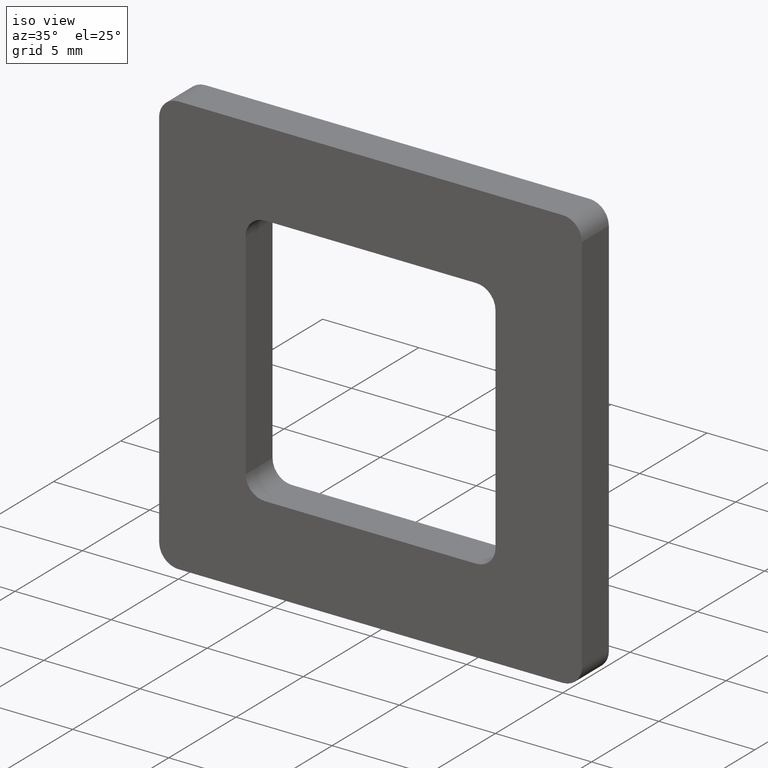
[diagram: clean part render]
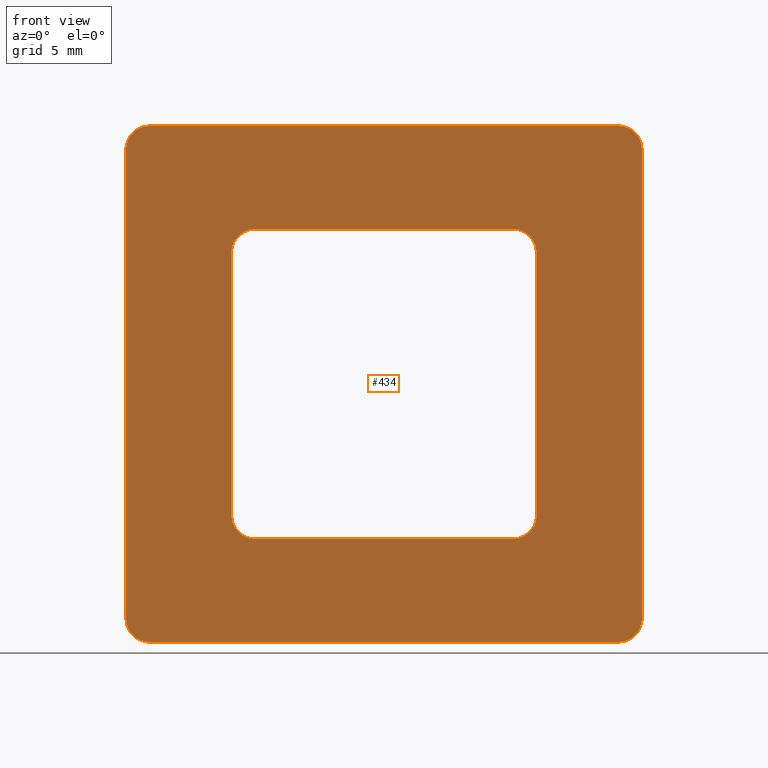
[diagram: tour spotlight — one face highlighted and labeled with its STEP entity id]
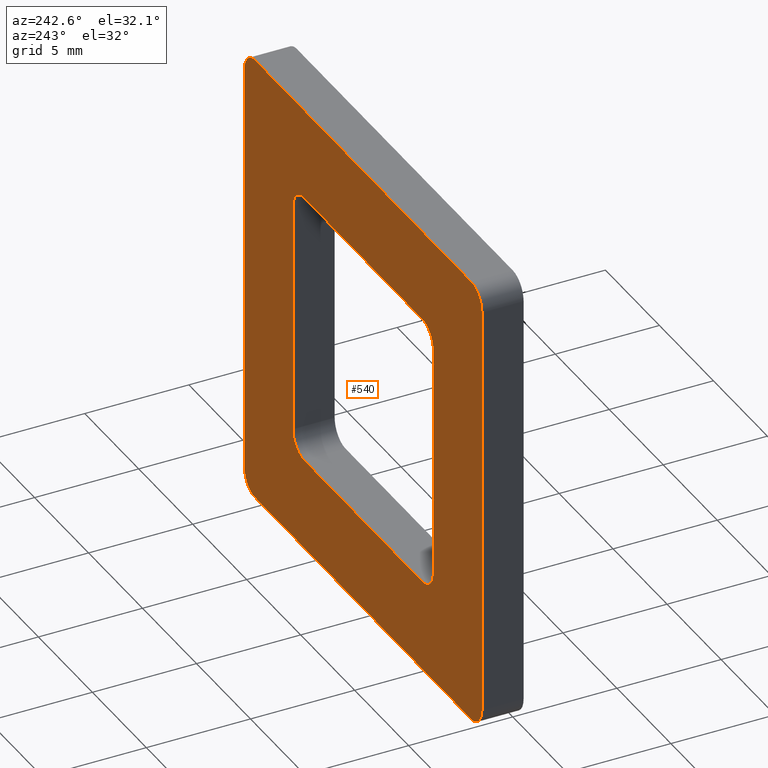
[diagram: tour spotlight — one face highlighted and labeled with its STEP entity id]
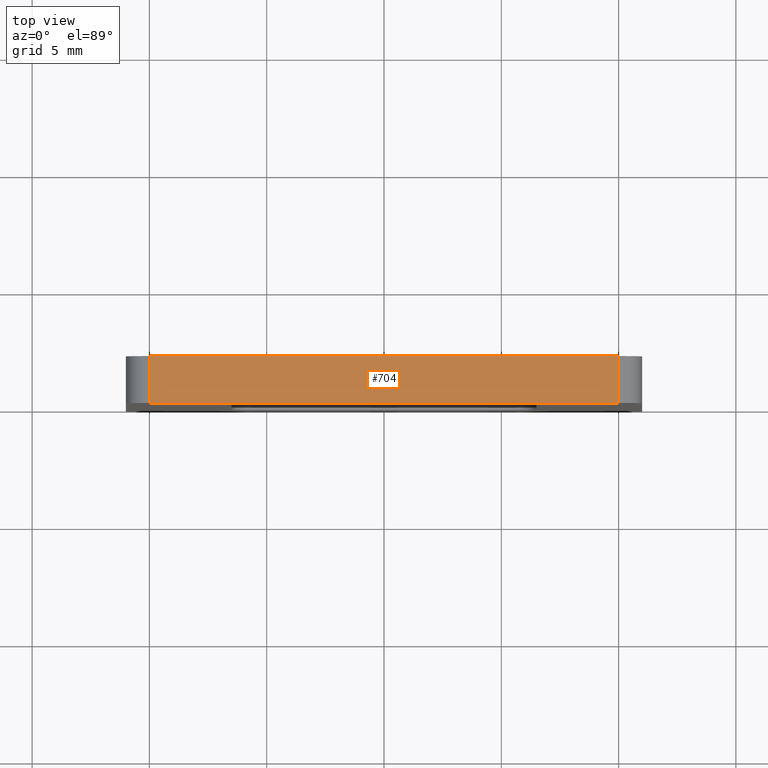
[diagram: tour spotlight — one face highlighted and labeled with its STEP entity id]
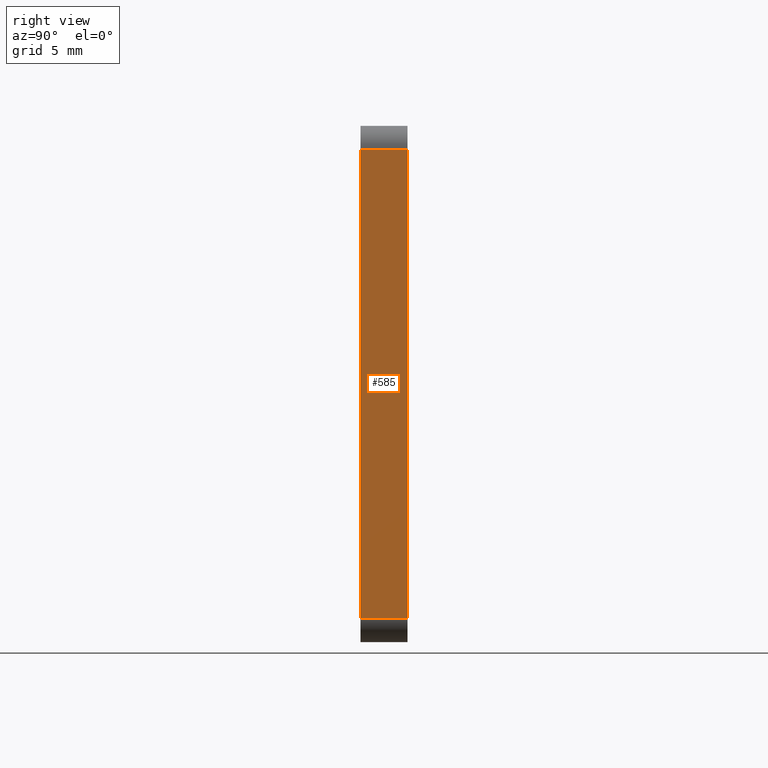
[diagram: tour spotlight — one face highlighted and labeled with its STEP entity id]
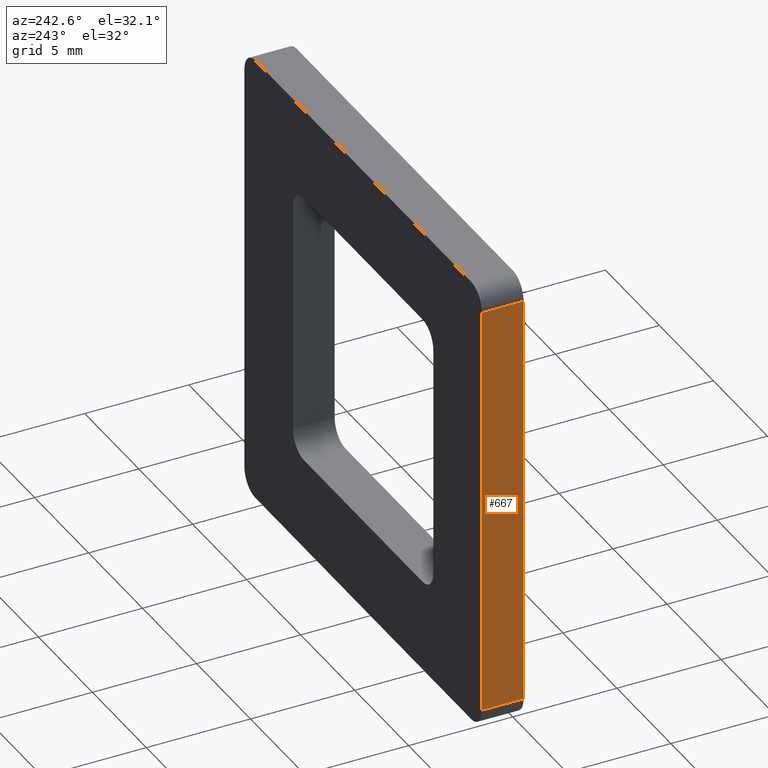
[diagram: tour spotlight — one face highlighted and labeled with its STEP entity id]
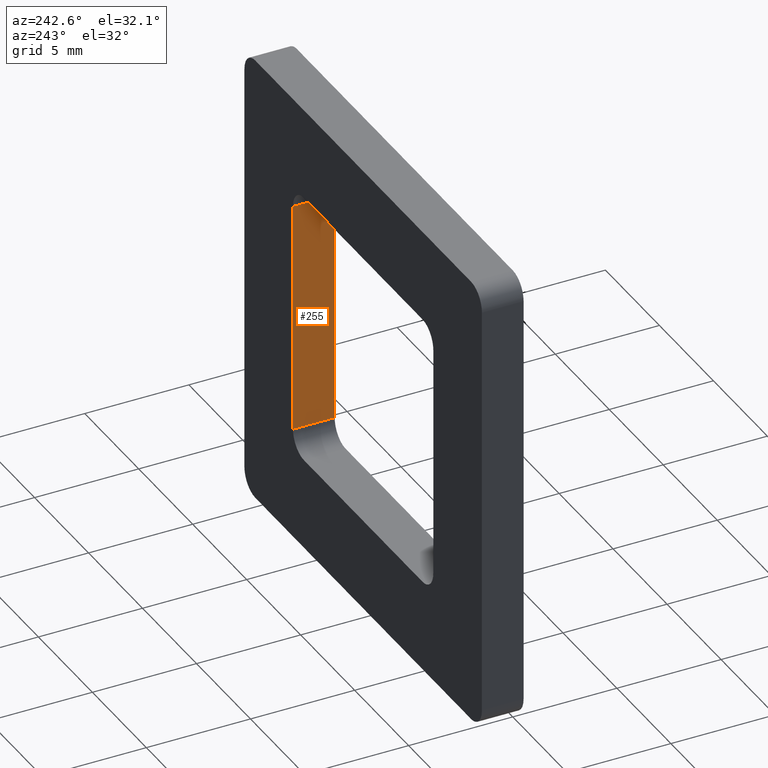
[diagram: tour spotlight — one face highlighted and labeled with its STEP entity id]
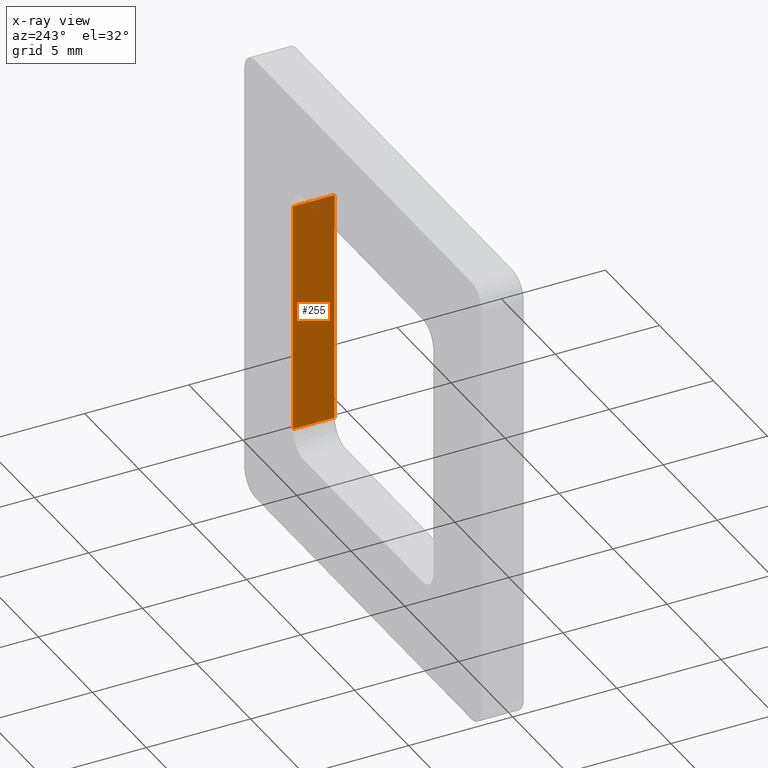
[diagram: x-ray of the same camera — body ghosted, this tour face saturated]
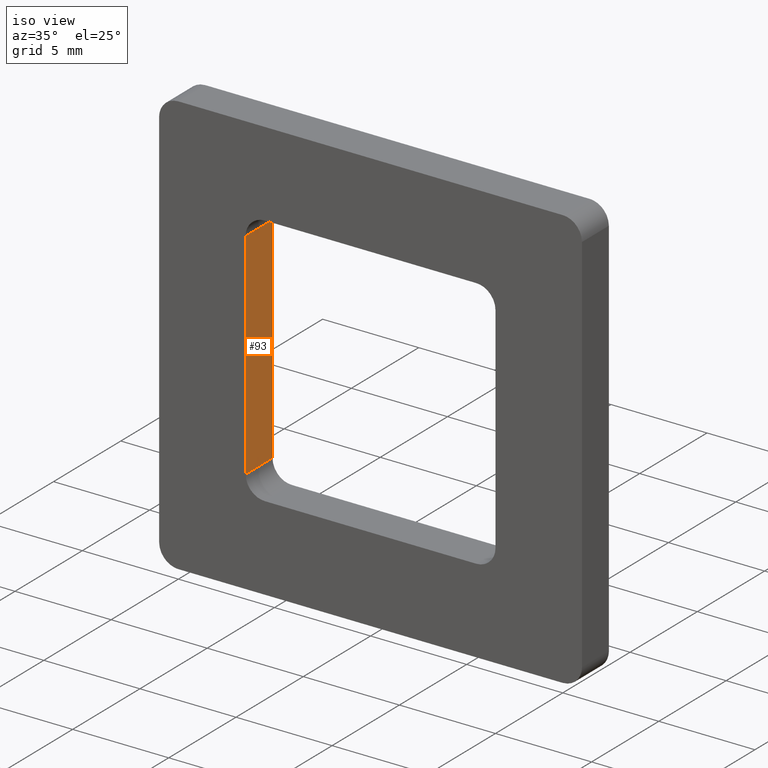
[diagram: tour spotlight — one face highlighted and labeled with its STEP entity id]
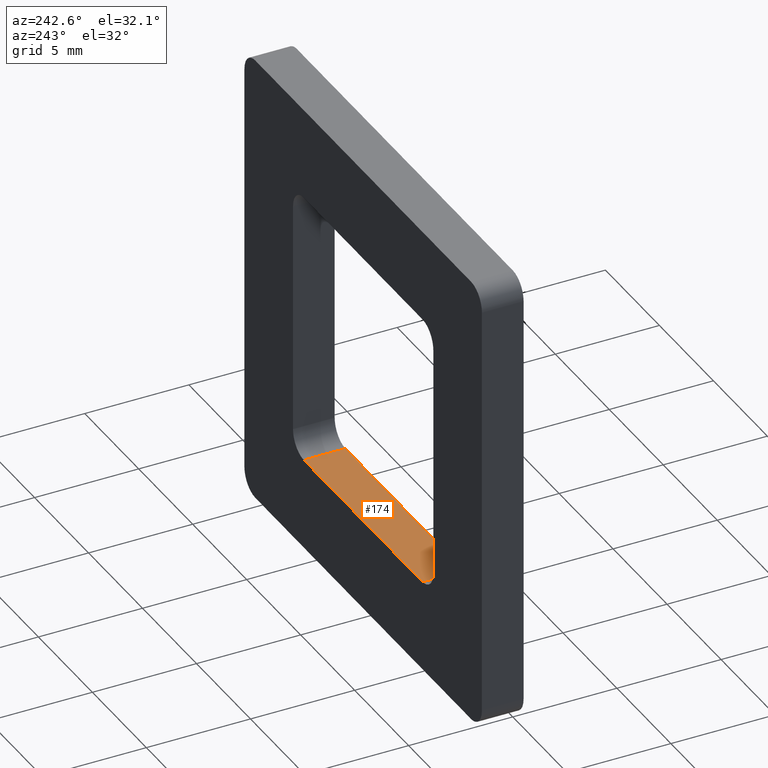
[diagram: tour spotlight — one face highlighted and labeled with its STEP entity id]
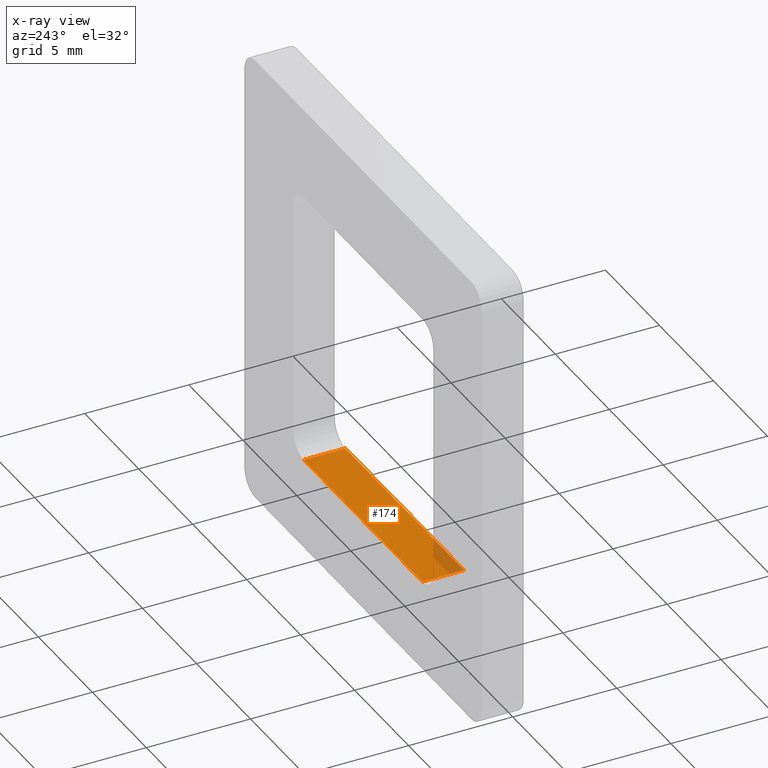
[diagram: x-ray of the same camera — body ghosted, this tour face saturated]
A machine part: a face-by-face anatomy tour. The part has 18 B-rep faces; the first image is the clean iso view, then the 8 largest visible faces are spotlighted one at a time (largest first), each with its STEP entity span.

Face 1 — front view, entity #434. In plain terms, the highlighted face is a freeform B-spline surface patch.
Definition (entity closure, byte-faithful):
#19=CARTESIAN_POINT('',(-5.499999805292820,0.0,6.599998474121080));
#20=VERTEX_POINT('',#19);
#21=CARTESIAN_POINT('',(-6.500000000000000,0.0,5.599998386698300));
#22=VERTEX_POINT('',#21);
#23=CARTESIAN_POINT('',(-5.499999805292820,0.0,6.599998474121080));
#24=CARTESIAN_POINT('',(-5.602271503841363,0.0,6.600047610113565));
#25=CARTESIAN_POINT('',(-5.757681386476734,0.0,6.575939252710484));
#26=CARTESIAN_POINT('',(-5.981940657766137,0.0,6.484652364904074));
#27=CARTESIAN_POINT('',(-6.149291914588513,0.0,6.371349355156148));
#28=CARTESIAN_POINT('',(-6.287180187057671,0.0,6.224697940013072));
#29=CARTESIAN_POINT('',(-6.384308691065453,0.0,6.077381914624537));
#30=CARTESIAN_POINT('',(-6.472984868942279,0.0,5.874038868745387));
#31=CARTESIAN_POINT('',(-6.500056828308114,0.0,5.706361845769147));
#32=CARTESIAN_POINT('',(-6.500000000000000,0.0,5.599998386698300));
#33=B_SPLINE_CURVE_WITH_KNOTS('',3,(#23,#24,#25,#26,#27,#28,#29,#30,#31,#32),.UNSPECIFIED.,.F.,.U.,(4,1,1,1,1,1,1,4),(0.000000027069647,0.306796130832803,0.466334977062116,0.724048720658952,0.908116637964619,1.067654823932074,1.251737897525835,1.570806465012214),.UNSPECIFIED.);
#34=EDGE_CURVE('',#20,#22,#33,.T.);
#71=CARTESIAN_POINT('',(-6.500000000000000,0.0,-5.600009918212890));
#72=VERTEX_POINT('',#71);
#73=CARTESIAN_POINT('',(-6.500000000000000,0.0,5.599998386698300));
#74=CARTESIAN_POINT('',(-6.500000000000000,0.0,-5.600009918212890));
#75=QUASI_UNIFORM_CURVE('',1,(#73,#74),.UNSPECIFIED.,.F.,.U.);
#76=EDGE_CURVE('',#22,#72,#75,.T.);
#108=CARTESIAN_POINT('',(-5.499999988075120,0.0,-6.600009918212890));
#109=VERTEX_POINT('',#108);
#110=CARTESIAN_POINT('',(-6.500000000000000,0.0,-5.600009918212890));
#111=CARTESIAN_POINT('',(-6.500096338761510,0.0,-5.718651224348338));
#112=CARTESIAN_POINT('',(-6.463158444687189,0.0,-5.923113299518286));
#113=CARTESIAN_POINT('',(-6.330525007271611,0.0,-6.174923652096678));
#114=CARTESIAN_POINT('',(-6.154725978316084,0.0,-6.371327140033055));
#115=CARTESIAN_POINT('',(-5.939828485589649,0.0,-6.511142512252079));
#116=CARTESIAN_POINT('',(-5.708618601731380,0.0,-6.585907380689978));
#117=CARTESIAN_POINT('',(-5.565449371299295,0.0,-6.600016945441354));
#118=CARTESIAN_POINT('',(-5.499999988075120,0.0,-6.600009918212890));
#119=B_SPLINE_CURVE_WITH_KNOTS('',3,(#110,#111,#112,#113,#114,#115,#116,#117,#118),.UNSPECIFIED.,.F.,.U.,(4,1,1,1,1,1,4),(0.000000027069838,0.355885849405058,0.613598114550901,0.846757960603233,1.141288465177002,1.374457113769694,1.570806194802052),.UNSPECIFIED.);
#120=EDGE_CURVE('',#72,#109,#119,.T.);
#152=CARTESIAN_POINT('',(5.499999523162879,0.0,-6.600009918212890));
#153=VERTEX_POINT('',#152);
#154=CARTESIAN_POINT('',(-5.499999988075120,0.0,-6.600009918212890));
#155=CARTESIAN_POINT('',(5.499999523162879,0.0,-6.600009918212890));
#156=QUASI_UNIFORM_CURVE('',1,(#154,#155),.UNSPECIFIED.,.F.,.U.);
#157=EDGE_CURVE('',#109,#153,#156,.T.);
#189=CARTESIAN_POINT('',(6.499999523162880,0.0,-5.600009874501520));
#190=VERTEX_POINT('',#189);
#191=CARTESIAN_POINT('',(5.499999523162879,0.0,-6.600009918212890));
#192=CARTESIAN_POINT('',(5.602271969401458,0.0,-6.600064714899125));
#193=CARTESIAN_POINT('',(5.774039546435617,0.0,-6.573406871039614));
#194=CARTESIAN_POINT('',(6.011577085845880,0.0,-6.469867359732230));
#195=CARTESIAN_POINT('',(6.209455085975989,0.0,-6.321235396156228));
#196=CARTESIAN_POINT('',(6.354214869257675,0.0,-6.135736835996869));
#197=CARTESIAN_POINT('',(6.434932973211570,0.0,-5.964990175707746));
#198=CARTESIAN_POINT('',(6.486094737115680,0.0,-5.796351508142365));
#199=CARTESIAN_POINT('',(6.500018038630845,0.0,-5.677733558134620));
#200=CARTESIAN_POINT('',(6.499999523162880,0.0,-5.600009874501520));
#201=B_SPLINE_CURVE_WITH_KNOTS('',3,(#191,#192,#193,#194,#195,#196,#197,#198,#199,#200),.UNSPECIFIED.,.F.,.U.,(4,1,1,1,1,1,1,4),(0.000000027071582,0.306796084268035,0.515421910505826,0.773139261879653,1.043111385976356,1.214920865244872,1.337640319665820,1.570806226589116),.UNSPECIFIED.);
#202=EDGE_CURVE('',#153,#190,#201,.T.);
#233=CARTESIAN_POINT('',(6.499999523162880,0.0,5.599994659423840));
#234=VERTEX_POINT('',#233);
#235=CARTESIAN_POINT('',(6.499999523162880,0.0,-5.600009874501520));
#236=CARTESIAN_POINT('',(6.499999523162880,0.0,5.599994659423840));
#237=QUASI_UNIFORM_CURVE('',1,(#235,#236),.UNSPECIFIED.,.F.,.U.);
#238=EDGE_CURVE('',#190,#234,#237,.T.);
#270=CARTESIAN_POINT('',(5.499999479451480,0.0,6.599994659423840));
#271=VERTEX_POINT('',#270);
#272=CARTESIAN_POINT('',(6.499999523162880,0.0,5.599994659423840));
#273=CARTESIAN_POINT('',(6.500007794061239,0.0,5.665444547042394));
#274=CARTESIAN_POINT('',(6.487100916830316,0.0,5.796340032770694));
#275=CARTESIAN_POINT('',(6.423886827601211,0.0,6.004821269935222));
#276=CARTESIAN_POINT('',(6.319076054078838,0.0,6.187203424187508));
#277=CARTESIAN_POINT('',(6.172931818485695,0.0,6.348432515296282));
#278=CARTESIAN_POINT('',(5.987827585226711,0.0,6.485758404133688));
#279=CARTESIAN_POINT('',(5.753625547646177,0.0,6.579419823886552));
#280=CARTESIAN_POINT('',(5.577719199898120,0.0,6.600002434375723));
#281=CARTESIAN_POINT('',(5.499999479451480,0.0,6.599994659423840));
#282=B_SPLINE_CURVE_WITH_KNOTS('',3,(#272,#273,#274,#275,#276,#277,#278,#279,#280,#281),.UNSPECIFIED.,.F.,.U.,(4,1,1,1,1,1,1,4),(0.000000027071732,0.196349183220017,0.392701604111150,0.650412453359468,0.822216300173182,1.043111385976577,1.337640319665868,1.570806226589145),.UNSPECIFIED.);
#283=EDGE_CURVE('',#234,#271,#282,.T.);
#314=CARTESIAN_POINT('',(5.499999479451480,0.0,6.599994659423840));
#315=CARTESIAN_POINT('',(-5.499999805292820,0.0,6.599998474121080));
#316=QUASI_UNIFORM_CURVE('',1,(#314,#315),.UNSPECIFIED.,.F.,.U.);
#317=EDGE_CURVE('',#271,#20,#316,.T.);
#329=CARTESIAN_POINT('',(-12.098899957359730,0.0,12.098899957359730));
#330=CARTESIAN_POINT('',(12.098900547445711,0.0,12.098899957359730));
#331=CARTESIAN_POINT('',(-12.098899957359730,0.0,-12.098900547445711));
#332=CARTESIAN_POINT('',(12.098900547445711,0.0,-12.098900547445711));
#333=B_SPLINE_SURFACE_WITH_KNOTS('',1,1,((#329,#331),(#330,#332)),.UNSPECIFIED.,.F.,.F.,.U.,(2,2),(2,2),(0.0,24.197800504805439),(0.0,24.197800504805450),.UNSPECIFIED.);
#334=CARTESIAN_POINT('',(10.0,0.0,11.0));
#335=VERTEX_POINT('',#334);
#336=CARTESIAN_POINT('',(-10.0,0.0,11.0));
#337=VERTEX_POINT('',#336);
#338=CARTESIAN_POINT('',(10.0,0.0,11.0));
#339=CARTESIAN_POINT('',(-10.0,0.0,11.0));
#340=QUASI_UNIFORM_CURVE('',1,(#338,#339),.UNSPECIFIED.,.F.,.U.);
#341=EDGE_CURVE('',#335,#337,#340,.T.);
#342=ORIENTED_EDGE('',*,*,#341,.T.);
#343=CARTESIAN_POINT('',(-11.0,0.0,10.0));
#344=VERTEX_POINT('',#343);
#345=CARTESIAN_POINT('',(-10.0,0.0,11.0));
#346=CARTESIAN_POINT('',(-11.0,0.0,11.0));
#347=CARTESIAN_POINT('',(-11.0,0.0,10.0));
#355=(BOUNDED_CURVE()B_SPLINE_CURVE(2,(#345,#346,#347),.UNSPECIFIED.,.F.,.U.)CURVE()GEOMETRIC_REPRESENTATION_ITEM()QUASI_UNIFORM_CURVE()RATIONAL_B_SPLINE_CURVE((1.0,0.707106781186548,1.0))REPRESENTATION_ITEM(''));
#356=EDGE_CURVE('',#337,#344,#355,.T.);
#357=ORIENTED_EDGE('',*,*,#356,.T.);
#358=CARTESIAN_POINT('',(-11.0,0.0,-10.0));
#359=VERTEX_POINT('',#358);
#360=CARTESIAN_POINT('',(-11.0,0.0,10.0));
#361=CARTESIAN_POINT('',(-11.0,0.0,-10.0));
#362=QUASI_UNIFORM_CURVE('',1,(#360,#361),.UNSPECIFIED.,.F.,.U.);
#363=EDGE_CURVE('',#344,#359,#362,.T.);
#364=ORIENTED_EDGE('',*,*,#363,.T.);
#365=CARTESIAN_POINT('',(-10.0,0.0,-11.0));
#366=VERTEX_POINT('',#365);
#367=CARTESIAN_POINT('',(-11.0,0.0,-10.0));
#368=CARTESIAN_POINT('',(-11.0,0.0,-11.0));
#369=CARTESIAN_POINT('',(-10.0,0.0,-11.0));
#377=(BOUNDED_CURVE()B_SPLINE_CURVE(2,(#367,#368,#369),.UNSPECIFIED.,.F.,.U.)CURVE()GEOMETRIC_REPRESENTATION_ITEM()QUASI_UNIFORM_CURVE()RATIONAL_B_SPLINE_CURVE((1.0,0.707106781186548,1.0))REPRESENTATION_ITEM(''));
#378=EDGE_CURVE('',#359,#366,#377,.T.);
#379=ORIENTED_EDGE('',*,*,#378,.T.);
#380=CARTESIAN_POINT('',(10.0,0.0,-11.0));
#381=VERTEX_POINT('',#380);
#382=CARTESIAN_POINT('',(-10.0,0.0,-11.0));
#383=CARTESIAN_POINT('',(10.0,0.0,-11.0));
#384=QUASI_UNIFORM_CURVE('',1,(#382,#383),.UNSPECIFIED.,.F.,.U.);
#385=EDGE_CURVE('',#366,#381,#384,.T.);
#386=ORIENTED_EDGE('',*,*,#385,.T.);
#387=CARTESIAN_POINT('',(11.0,0.0,-10.0));
#388=VERTEX_POINT('',#387);
#389=CARTESIAN_POINT('',(10.0,0.0,-11.0));
#390=CARTESIAN_POINT('',(11.0,0.0,-11.0));
#391=CARTESIAN_POINT('',(11.0,0.0,-10.0));
#399=(BOUNDED_CURVE()B_SPLINE_CURVE(2,(#389,#390,#391),.UNSPECIFIED.,.F.,.U.)CURVE()GEOMETRIC_REPRESENTATION_ITEM()QUASI_UNIFORM_CURVE()RATIONAL_B_SPLINE_CURVE((1.0,0.707106781186548,1.0))REPRESENTATION_ITEM(''));
#400=EDGE_CURVE('',#381,#388,#399,.T.);
#401=ORIENTED_EDGE('',*,*,#400,.T.);
#402=CARTESIAN_POINT('',(11.0,0.0,10.0));
#403=VERTEX_POINT('',#402);
#404=CARTESIAN_POINT('',(11.0,0.0,-10.0));
#405=CARTESIAN_POINT('',(11.0,0.0,10.0));
#406=QUASI_UNIFORM_CURVE('',1,(#404,#405),.UNSPECIFIED.,.F.,.U.);
#407=EDGE_CURVE('',#388,#403,#406,.T.);
#408=ORIENTED_EDGE('',*,*,#407,.T.);
#409=CARTESIAN_POINT('',(11.0,0.0,10.0));
#410=CARTESIAN_POINT('',(11.0,0.0,11.0));
#411=CARTESIAN_POINT('',(10.0,0.0,11.0));
#419=(BOUNDED_CURVE()B_SPLINE_CURVE(2,(#409,#410,#411),.UNSPECIFIED.,.F.,.U.)CURVE()GEOMETRIC_REPRESENTATION_ITEM()QUASI_UNIFORM_CURVE()RATIONAL_B_SPLINE_CURVE((1.0,0.707106781186548,1.0))REPRESENTATION_ITEM(''));
#420=EDGE_CURVE('',#403,#335,#419,.T.);
#421=ORIENTED_EDGE('',*,*,#420,.T.);
#422=EDGE_LOOP('',(#342,#357,#364,#379,#386,#401,#408,#421));
#423=FACE_OUTER_BOUND('',#422,.T.);
#424=ORIENTED_EDGE('',*,*,#317,.F.);
#425=ORIENTED_EDGE('',*,*,#283,.F.);
#426=ORIENTED_EDGE('',*,*,#238,.F.);
#427=ORIENTED_EDGE('',*,*,#202,.F.);
#428=ORIENTED_EDGE('',*,*,#157,.F.);
#429=ORIENTED_EDGE('',*,*,#120,.F.);
#430=ORIENTED_EDGE('',*,*,#76,.F.);
#431=ORIENTED_EDGE('',*,*,#34,.F.);
#432=EDGE_LOOP('',(#424,#425,#426,#427,#428,#429,#430,#431));
#433=FACE_BOUND('',#432,.T.);
#434=ADVANCED_FACE('',(#423,#433),#333,.F.);

Face 2 — auxiliary view, entity #540. In plain terms, the highlighted face is a freeform B-spline surface patch.
Definition (entity closure, byte-faithful):
#36=CARTESIAN_POINT('',(-6.500000000000000,2.0,5.599998386698300));
#37=VERTEX_POINT('',#36);
#43=CARTESIAN_POINT('',(-5.499999805292820,2.0,6.599998474121080));
#44=VERTEX_POINT('',#43);
#45=CARTESIAN_POINT('',(-5.499999805292820,2.0,6.599998474121080));
#46=CARTESIAN_POINT('',(-5.602271503840528,1.999999999999994,6.600047610113657));
#47=CARTESIAN_POINT('',(-5.757681389118447,2.000000000000022,6.575939253207957));
#48=CARTESIAN_POINT('',(-5.981940639755467,1.999999999999973,6.484652361509157));
#49=CARTESIAN_POINT('',(-6.149291995525049,2.000000000000022,6.371349376502232));
#50=CARTESIAN_POINT('',(-6.287179590371421,1.999999999999996,6.224697710988348));
#51=CARTESIAN_POINT('',(-6.388832578125717,1.999999999999994,6.070532105615633));
#52=CARTESIAN_POINT('',(-6.475095637857812,1.999999999999992,5.865869167119177));
#53=CARTESIAN_POINT('',(-6.500043378292648,2.000000000000028,5.698177527696788));
#54=CARTESIAN_POINT('',(-6.500000000000000,2.0,5.599998386698300));
#55=B_SPLINE_CURVE_WITH_KNOTS('',3,(#45,#46,#47,#48,#49,#50,#51,#52,#53,#54),.UNSPECIFIED.,.F.,.U.,(4,1,1,1,1,1,1,4),(0.000000027069647,0.306796130832803,0.466334977062116,0.724048720658952,0.908116637964619,1.067654823932074,1.276280812942471,1.570806465012214),.UNSPECIFIED.);
#56=EDGE_CURVE('',#44,#37,#55,.T.);
#78=CARTESIAN_POINT('',(-6.500000000000000,2.0,-5.600009918212890));
#79=VERTEX_POINT('',#78);
#85=CARTESIAN_POINT('',(-6.500000000000000,2.0,5.599998386698300));
#86=CARTESIAN_POINT('',(-6.500000000000000,2.0,-5.600009918212890));
#87=QUASI_UNIFORM_CURVE('',1,(#85,#86),.UNSPECIFIED.,.F.,.U.);
#88=EDGE_CURVE('',#37,#79,#87,.T.);
#122=CARTESIAN_POINT('',(-5.499999988075120,2.0,-6.600009918212890));
#123=VERTEX_POINT('',#122);
#129=CARTESIAN_POINT('',(-6.500000000000000,2.0,-5.600009918212890));
#130=CARTESIAN_POINT('',(-6.500024327640000,2.000000000000001,-5.685915458413326));
#131=CARTESIAN_POINT('',(-6.481962570234869,1.999999999999999,-5.824981657617534));
#132=CARTESIAN_POINT('',(-6.408594458662311,2.000000000000001,-6.034087905378192));
#133=CARTESIAN_POINT('',(-6.306897566027766,1.999999999999998,-6.203773145822335));
#134=CARTESIAN_POINT('',(-6.177420795221791,2.000000000000004,-6.341415069739232));
#135=CARTESIAN_POINT('',(-6.037779625427416,1.999999999999981,-6.449029047577841));
#136=CARTESIAN_POINT('',(-5.881299544961586,2.000000000000056,-6.531443829641099));
#137=CARTESIAN_POINT('',(-5.692255478139583,1.999999999999900,-6.587515454066765));
#138=CARTESIAN_POINT('',(-5.565449897817175,2.000000000000073,-6.600018307527357));
#139=CARTESIAN_POINT('',(-5.499999988075120,2.0,-6.600009918212890));
#140=B_SPLINE_CURVE_WITH_KNOTS('',3,(#129,#130,#131,#132,#133,#134,#135,#136,#137,#138,#139),.UNSPECIFIED.,.F.,.U.,(4,1,1,1,1,1,1,1,4),(0.000000027069838,0.257710106033720,0.417245790957405,0.662689984083491,0.846757960603233,0.981752192066466,1.190376831780440,1.374457113769694,1.570806194802052),.UNSPECIFIED.);
#141=EDGE_CURVE('',#79,#123,#140,.T.);
#159=CARTESIAN_POINT('',(5.499999523162879,2.0,-6.600009918212890));
#160=VERTEX_POINT('',#159);
#166=CARTESIAN_POINT('',(-5.499999988075120,2.0,-6.600009918212890));
#167=CARTESIAN_POINT('',(5.499999523162879,2.0,-6.600009918212890));
#168=QUASI_UNIFORM_CURVE('',1,(#166,#167),.UNSPECIFIED.,.F.,.U.);
#169=EDGE_CURVE('',#123,#160,#168,.T.);
#204=CARTESIAN_POINT('',(6.499999523162880,2.0,-5.600009874501520));
#205=VERTEX_POINT('',#204);
#211=CARTESIAN_POINT('',(5.499999523162879,2.0,-6.600009918212890));
#212=CARTESIAN_POINT('',(5.602270638074455,1.999999999999999,-6.600062803025037));
#213=CARTESIAN_POINT('',(5.774042799332637,1.999999999999999,-6.573411813358403));
#214=CARTESIAN_POINT('',(6.011578115039709,1.999999999999999,-6.469865829517368));
#215=CARTESIAN_POINT('',(6.183059080250349,2.0,-6.341046102280165));
#216=CARTESIAN_POINT('',(6.325186876513041,1.999999999999999,-6.176262032580319));
#217=CARTESIAN_POINT('',(6.418501508522814,2.000000000000001,-6.011544249635122));
#218=CARTESIAN_POINT('',(6.484179233180799,2.0,-5.812715159640356));
#219=CARTESIAN_POINT('',(6.500015928308903,2.0,-5.677732489993115));
#220=CARTESIAN_POINT('',(6.499999523162880,2.0,-5.600009874501520));
#221=B_SPLINE_CURVE_WITH_KNOTS('',3,(#211,#212,#213,#214,#215,#216,#217,#218,#219,#220),.UNSPECIFIED.,.F.,.U.,(4,1,1,1,1,1,1,4),(0.000000027071582,0.306796084268035,0.515421910505826,0.773139261879653,0.944934203357256,1.165832497648089,1.337640319665820,1.570806226589116),.UNSPECIFIED.);
#222=EDGE_CURVE('',#160,#205,#221,.T.);
#240=CARTESIAN_POINT('',(6.499999523162880,2.0,5.599994659423840));
#241=VERTEX_POINT('',#240);
#247=CARTESIAN_POINT('',(6.499999523162880,2.0,-5.600009874501520));
#248=CARTESIAN_POINT('',(6.499999523162880,2.0,5.599994659423840));
#249=QUASI_UNIFORM_CURVE('',1,(#247,#248),.UNSPECIFIED.,.F.,.U.);
#250=EDGE_CURVE('',#205,#241,#249,.T.);
#285=CARTESIAN_POINT('',(5.499999479451480,2.0,6.599994659423840));
#286=VERTEX_POINT('',#285);
#292=CARTESIAN_POINT('',(6.499999523162880,2.0,5.599994659423840));
#293=CARTESIAN_POINT('',(6.500007718066231,2.000000000000004,5.665444527258975));
#294=CARTESIAN_POINT('',(6.487101077425536,1.999999999999996,5.796340073812775));
#295=CARTESIAN_POINT('',(6.423886643109709,2.000000000000007,6.004821135947455));
#296=CARTESIAN_POINT('',(6.319076403935063,1.999999999999986,6.187203822802666));
#297=CARTESIAN_POINT('',(6.172931265779666,2.000000000000016,6.348431801222911));
#298=CARTESIAN_POINT('',(5.987828052240229,1.999999999999993,6.485759116803231));
#299=CARTESIAN_POINT('',(5.753625276227378,2.000000000000005,6.579419421949632));
#300=CARTESIAN_POINT('',(5.577719254256267,1.999999999999999,6.600002515001978));
#301=CARTESIAN_POINT('',(5.499999479451480,2.0,6.599994659423840));
#302=B_SPLINE_CURVE_WITH_KNOTS('',3,(#292,#293,#294,#295,#296,#297,#298,#299,#300,#301),.UNSPECIFIED.,.F.,.U.,(4,1,1,1,1,1,1,4),(0.000000027071732,0.196349183220017,0.392701604111150,0.650412453359468,0.822216300173182,1.043111385976577,1.337640319665868,1.570806226589145),.UNSPECIFIED.);
#303=EDGE_CURVE('',#241,#286,#302,.T.);
#320=CARTESIAN_POINT('',(5.499999479451480,2.0,6.599994659423840));
#321=CARTESIAN_POINT('',(-5.499999805292820,2.0,6.599998474121080));
#322=QUASI_UNIFORM_CURVE('',1,(#320,#321),.UNSPECIFIED.,.F.,.U.);
#323=EDGE_CURVE('',#286,#44,#322,.T.);
#435=CARTESIAN_POINT('',(-12.098899957359730,2.0,12.098899957359730));
#436=CARTESIAN_POINT('',(12.098900547445711,2.0,12.098899957359730));
#437=CARTESIAN_POINT('',(-12.098899957359730,2.0,-12.098900547445711));
#438=CARTESIAN_POINT('',(12.098900547445711,2.0,-12.098900547445711));
#439=B_SPLINE_SURFACE_WITH_KNOTS('',1,1,((#435,#437),(#436,#438)),.UNSPECIFIED.,.F.,.F.,.U.,(2,2),(2,2),(0.0,24.197800504805439),(0.0,24.197800504805450),.UNSPECIFIED.);
#440=CARTESIAN_POINT('',(10.0,2.0,11.0));
#441=VERTEX_POINT('',#440);
#442=CARTESIAN_POINT('',(-10.0,2.0,11.0));
#443=VERTEX_POINT('',#442);
#444=CARTESIAN_POINT('',(10.0,2.0,11.0));
#445=CARTESIAN_POINT('',(-10.0,2.0,11.0));
#446=QUASI_UNIFORM_CURVE('',1,(#444,#445),.UNSPECIFIED.,.F.,.U.);
#447=EDGE_CURVE('',#441,#443,#446,.T.);
#448=ORIENTED_EDGE('',*,*,#447,.F.);
#449=CARTESIAN_POINT('',(11.0,2.0,10.0));
#450=VERTEX_POINT('',#449);
#451=CARTESIAN_POINT('',(11.0,2.0,10.0));
#452=CARTESIAN_POINT('',(11.0,2.000000000000000,11.0));
#453=CARTESIAN_POINT('',(10.0,2.0,11.0));
#461=(BOUNDED_CURVE()B_SPLINE_CURVE(2,(#451,#452,#453),.UNSPECIFIED.,.F.,.U.)CURVE()GEOMETRIC_REPRESENTATION_ITEM()QUASI_UNIFORM_CURVE()RATIONAL_B_SPLINE_CURVE((1.0,0.707106781186548,1.0))REPRESENTATION_ITEM(''));
#462=EDGE_CURVE('',#450,#441,#461,.T.);
#463=ORIENTED_EDGE('',*,*,#462,.F.);
#464=CARTESIAN_POINT('',(11.0,2.0,-10.0));
#465=VERTEX_POINT('',#464);
#466=CARTESIAN_POINT('',(11.0,2.0,-10.0));
#467=CARTESIAN_POINT('',(11.0,2.0,10.0));
#468=QUASI_UNIFORM_CURVE('',1,(#466,#467),.UNSPECIFIED.,.F.,.U.);
#469=EDGE_CURVE('',#465,#450,#468,.T.);
#470=ORIENTED_EDGE('',*,*,#469,.F.);
#471=CARTESIAN_POINT('',(10.0,2.0,-11.0));
#472=VERTEX_POINT('',#471);
#473=CARTESIAN_POINT('',(10.0,2.0,-11.0));
#474=CARTESIAN_POINT('',(11.0,2.000000000000000,-11.0));
#475=CARTESIAN_POINT('',(11.0,2.0,-10.0));
#483=(BOUNDED_CURVE()B_SPLINE_CURVE(2,(#473,#474,#475),.UNSPECIFIED.,.F.,.U.)CURVE()GEOMETRIC_REPRESENTATION_ITEM()QUASI_UNIFORM_CURVE()RATIONAL_B_SPLINE_CURVE((1.0,0.707106781186548,1.0))REPRESENTATION_ITEM(''));
#484=EDGE_CURVE('',#472,#465,#483,.T.);
#485=ORIENTED_EDGE('',*,*,#484,.F.);
#486=CARTESIAN_POINT('',(-10.0,2.0,-11.0));
#487=VERTEX_POINT('',#486);
#488=CARTESIAN_POINT('',(-10.0,2.0,-11.0));
#489=CARTESIAN_POINT('',(10.0,2.0,-11.0));
#490=QUASI_UNIFORM_CURVE('',1,(#488,#489),.UNSPECIFIED.,.F.,.U.);
#491=EDGE_CURVE('',#487,#472,#490,.T.);
#492=ORIENTED_EDGE('',*,*,#491,.F.);
#493=CARTESIAN_POINT('',(-11.0,2.0,-10.0));
#494=VERTEX_POINT('',#493);
#495=CARTESIAN_POINT('',(-11.0,2.0,-10.0));
#496=CARTESIAN_POINT('',(-11.0,2.000000000000000,-11.0));
#497=CARTESIAN_POINT('',(-10.0,2.0,-11.0));
#505=(BOUNDED_CURVE()B_SPLINE_CURVE(2,(#495,#496,#497),.UNSPECIFIED.,.F.,.U.)CURVE()GEOMETRIC_REPRESENTATION_ITEM()QUASI_UNIFORM_CURVE()RATIONAL_B_SPLINE_CURVE((1.0,0.707106781186548,1.0))REPRESENTATION_ITEM(''));
#506=EDGE_CURVE('',#494,#487,#505,.T.);
#507=ORIENTED_EDGE('',*,*,#506,.F.);
#508=CARTESIAN_POINT('',(-11.0,2.0,10.0));
#509=VERTEX_POINT('',#508);
#510=CARTESIAN_POINT('',(-11.0,2.0,10.0));
#511=CARTESIAN_POINT('',(-11.0,2.0,-10.0));
#512=QUASI_UNIFORM_CURVE('',1,(#510,#511),.UNSPECIFIED.,.F.,.U.);
#513=EDGE_CURVE('',#509,#494,#512,.T.);
#514=ORIENTED_EDGE('',*,*,#513,.F.);
#515=CARTESIAN_POINT('',(-10.0,2.0,11.0));
#516=CARTESIAN_POINT('',(-11.0,2.000000000000000,11.0));
#517=CARTESIAN_POINT('',(-11.0,2.0,10.0));
#525=(BOUNDED_CURVE()B_SPLINE_CURVE(2,(#515,#516,#517),.UNSPECIFIED.,.F.,.U.)CURVE()GEOMETRIC_REPRESENTATION_ITEM()QUASI_UNIFORM_CURVE()RATIONAL_B_SPLINE_CURVE((1.0,0.707106781186548,1.0))REPRESENTATION_ITEM(''));
#526=EDGE_CURVE('',#443,#509,#525,.T.);
#527=ORIENTED_EDGE('',*,*,#526,.F.);
#528=EDGE_LOOP('',(#448,#463,#470,#485,#492,#507,#514,#527));
#529=FACE_OUTER_BOUND('',#528,.T.);
#530=ORIENTED_EDGE('',*,*,#323,.T.);
#531=ORIENTED_EDGE('',*,*,#56,.T.);
#532=ORIENTED_EDGE('',*,*,#88,.T.);
#533=ORIENTED_EDGE('',*,*,#141,.T.);
#534=ORIENTED_EDGE('',*,*,#169,.T.);
#535=ORIENTED_EDGE('',*,*,#222,.T.);
#536=ORIENTED_EDGE('',*,*,#250,.T.);
#537=ORIENTED_EDGE('',*,*,#303,.T.);
#538=EDGE_LOOP('',(#530,#531,#532,#533,#534,#535,#536,#537));
#539=FACE_BOUND('',#538,.T.);
#540=ADVANCED_FACE('',(#529,#539),#439,.T.);

Face 3 — top view, entity #704. In plain terms, the highlighted face is a freeform B-spline surface patch.
Definition (entity closure, byte-faithful):
#334=CARTESIAN_POINT('',(10.0,0.0,11.0));
#335=VERTEX_POINT('',#334);
#336=CARTESIAN_POINT('',(-10.0,0.0,11.0));
#337=VERTEX_POINT('',#336);
#338=CARTESIAN_POINT('',(10.0,0.0,11.0));
#339=CARTESIAN_POINT('',(-10.0,0.0,11.0));
#340=QUASI_UNIFORM_CURVE('',1,(#338,#339),.UNSPECIFIED.,.F.,.U.);
#341=EDGE_CURVE('',#335,#337,#340,.T.);
#440=CARTESIAN_POINT('',(10.0,2.0,11.0));
#441=VERTEX_POINT('',#440);
#442=CARTESIAN_POINT('',(-10.0,2.0,11.0));
#443=VERTEX_POINT('',#442);
#444=CARTESIAN_POINT('',(10.0,2.0,11.0));
#445=CARTESIAN_POINT('',(-10.0,2.0,11.0));
#446=QUASI_UNIFORM_CURVE('',1,(#444,#445),.UNSPECIFIED.,.F.,.U.);
#447=EDGE_CURVE('',#441,#443,#446,.T.);
#562=CARTESIAN_POINT('',(10.0,2.0,11.0));
#563=CARTESIAN_POINT('',(10.0,0.0,11.0));
#564=QUASI_UNIFORM_CURVE('',1,(#562,#563),.UNSPECIFIED.,.F.,.U.);
#565=EDGE_CURVE('',#441,#335,#564,.T.);
#683=CARTESIAN_POINT('',(-10.0,2.0,11.0));
#684=CARTESIAN_POINT('',(-10.0,0.0,11.0));
#685=QUASI_UNIFORM_CURVE('',1,(#683,#684),.UNSPECIFIED.,.F.,.U.);
#686=EDGE_CURVE('',#443,#337,#685,.T.);
#693=CARTESIAN_POINT('',(-10.998999961236120,-0.099899996123612,11.0));
#694=CARTESIAN_POINT('',(10.999000497677921,-0.099899996123612,11.0));
#695=CARTESIAN_POINT('',(-10.998999961236120,2.099900049767792,11.0));
#696=CARTESIAN_POINT('',(10.999000497677921,2.099900049767792,11.0));
#697=B_SPLINE_SURFACE_WITH_KNOTS('',1,1,((#693,#695),(#694,#696)),.UNSPECIFIED.,.F.,.F.,.U.,(2,2),(2,2),(0.0,21.998000458914039),(0.0,2.199800045891404),.UNSPECIFIED.);
#698=ORIENTED_EDGE('',*,*,#341,.F.);
#699=ORIENTED_EDGE('',*,*,#565,.F.);
#700=ORIENTED_EDGE('',*,*,#447,.T.);
#701=ORIENTED_EDGE('',*,*,#686,.T.);
#702=EDGE_LOOP('',(#698,#699,#700,#701));
#703=FACE_OUTER_BOUND('',#702,.T.);
#704=ADVANCED_FACE('',(#703),#697,.T.);

Face 4 — right view, entity #585. In plain terms, the highlighted face is a freeform B-spline surface patch.
Definition (entity closure, byte-faithful):
#387=CARTESIAN_POINT('',(11.0,0.0,-10.0));
#388=VERTEX_POINT('',#387);
#402=CARTESIAN_POINT('',(11.0,0.0,10.0));
#403=VERTEX_POINT('',#402);
#404=CARTESIAN_POINT('',(11.0,0.0,-10.0));
#405=CARTESIAN_POINT('',(11.0,0.0,10.0));
#406=QUASI_UNIFORM_CURVE('',1,(#404,#405),.UNSPECIFIED.,.F.,.U.);
#407=EDGE_CURVE('',#388,#403,#406,.T.);
#449=CARTESIAN_POINT('',(11.0,2.0,10.0));
#450=VERTEX_POINT('',#449);
#464=CARTESIAN_POINT('',(11.0,2.0,-10.0));
#465=VERTEX_POINT('',#464);
#466=CARTESIAN_POINT('',(11.0,2.0,-10.0));
#467=CARTESIAN_POINT('',(11.0,2.0,10.0));
#468=QUASI_UNIFORM_CURVE('',1,(#466,#467),.UNSPECIFIED.,.F.,.U.);
#469=EDGE_CURVE('',#465,#450,#468,.T.);
#556=CARTESIAN_POINT('',(11.0,2.0,10.0));
#557=CARTESIAN_POINT('',(11.0,0.0,10.0));
#558=QUASI_UNIFORM_CURVE('',1,(#556,#557),.UNSPECIFIED.,.F.,.U.);
#559=EDGE_CURVE('',#450,#403,#558,.T.);
#570=CARTESIAN_POINT('',(11.0,-0.099899996123612,10.998999961236120));
#571=CARTESIAN_POINT('',(11.0,-0.099899996123612,-10.999000497677921));
#572=CARTESIAN_POINT('',(11.0,2.099900049767792,10.998999961236120));
#573=CARTESIAN_POINT('',(11.0,2.099900049767792,-10.999000497677921));
#574=B_SPLINE_SURFACE_WITH_KNOTS('',1,1,((#570,#572),(#571,#573)),.UNSPECIFIED.,.F.,.F.,.U.,(2,2),(2,2),(0.0,21.998000458914039),(0.0,2.199800045891404),.UNSPECIFIED.);
#575=ORIENTED_EDGE('',*,*,#407,.F.);
#576=CARTESIAN_POINT('',(11.0,2.0,-10.0));
#577=CARTESIAN_POINT('',(11.0,0.0,-10.0));
#578=QUASI_UNIFORM_CURVE('',1,(#576,#577),.UNSPECIFIED.,.F.,.U.);
#579=EDGE_CURVE('',#465,#388,#578,.T.);
#580=ORIENTED_EDGE('',*,*,#579,.F.);
#581=ORIENTED_EDGE('',*,*,#469,.T.);
#582=ORIENTED_EDGE('',*,*,#559,.T.);
#583=EDGE_LOOP('',(#575,#580,#581,#582));
#584=FACE_OUTER_BOUND('',#583,.T.);
#585=ADVANCED_FACE('',(#584),#574,.T.);

Face 5 — auxiliary view, entity #667. In plain terms, the highlighted face is a freeform B-spline surface patch.
Definition (entity closure, byte-faithful):
#343=CARTESIAN_POINT('',(-11.0,0.0,10.0));
#344=VERTEX_POINT('',#343);
#358=CARTESIAN_POINT('',(-11.0,0.0,-10.0));
#359=VERTEX_POINT('',#358);
#360=CARTESIAN_POINT('',(-11.0,0.0,10.0));
#361=CARTESIAN_POINT('',(-11.0,0.0,-10.0));
#362=QUASI_UNIFORM_CURVE('',1,(#360,#361),.UNSPECIFIED.,.F.,.U.);
#363=EDGE_CURVE('',#344,#359,#362,.T.);
#493=CARTESIAN_POINT('',(-11.0,2.0,-10.0));
#494=VERTEX_POINT('',#493);
#508=CARTESIAN_POINT('',(-11.0,2.0,10.0));
#509=VERTEX_POINT('',#508);
#510=CARTESIAN_POINT('',(-11.0,2.0,10.0));
#511=CARTESIAN_POINT('',(-11.0,2.0,-10.0));
#512=QUASI_UNIFORM_CURVE('',1,(#510,#511),.UNSPECIFIED.,.F.,.U.);
#513=EDGE_CURVE('',#509,#494,#512,.T.);
#642=CARTESIAN_POINT('',(-11.0,2.0,-10.0));
#643=CARTESIAN_POINT('',(-11.0,0.0,-10.0));
#644=QUASI_UNIFORM_CURVE('',1,(#642,#643),.UNSPECIFIED.,.F.,.U.);
#645=EDGE_CURVE('',#494,#359,#644,.T.);
#652=CARTESIAN_POINT('',(-11.0,-0.099899996123612,-10.998999961236120));
#653=CARTESIAN_POINT('',(-11.0,-0.099899996123612,10.999000497677921));
#654=CARTESIAN_POINT('',(-11.0,2.099900049767792,-10.998999961236120));
#655=CARTESIAN_POINT('',(-11.0,2.099900049767792,10.999000497677921));
#656=B_SPLINE_SURFACE_WITH_KNOTS('',1,1,((#652,#654),(#653,#655)),.UNSPECIFIED.,.F.,.F.,.U.,(2,2),(2,2),(0.0,21.998000458914039),(0.0,2.199800045891404),.UNSPECIFIED.);
#657=ORIENTED_EDGE('',*,*,#363,.F.);
#658=CARTESIAN_POINT('',(-11.0,2.0,10.0));
#659=CARTESIAN_POINT('',(-11.0,0.0,10.0));
#660=QUASI_UNIFORM_CURVE('',1,(#658,#659),.UNSPECIFIED.,.F.,.U.);
#661=EDGE_CURVE('',#509,#344,#660,.T.);
#662=ORIENTED_EDGE('',*,*,#661,.F.);
#663=ORIENTED_EDGE('',*,*,#513,.T.);
#664=ORIENTED_EDGE('',*,*,#645,.T.);
#665=EDGE_LOOP('',(#657,#662,#663,#664));
#666=FACE_OUTER_BOUND('',#665,.T.);
#667=ADVANCED_FACE('',(#666),#656,.T.);

Face 6 — auxiliary view, entity #255. An x-ray twin of the same camera follows (body ghosted, this face saturated) — the face is partly hidden behind the body. In plain terms, the highlighted face is a freeform B-spline surface patch.
Definition (entity closure, byte-faithful):
#189=CARTESIAN_POINT('',(6.499999523162880,0.0,-5.600009874501520));
#190=VERTEX_POINT('',#189);
#204=CARTESIAN_POINT('',(6.499999523162880,2.0,-5.600009874501520));
#205=VERTEX_POINT('',#204);
#206=CARTESIAN_POINT('',(6.499999523162880,2.0,-5.600009874501520));
#207=CARTESIAN_POINT('',(6.499999523162880,0.0,-5.600009874501520));
#208=QUASI_UNIFORM_CURVE('',1,(#206,#207),.UNSPECIFIED.,.F.,.U.);
#209=EDGE_CURVE('',#205,#190,#208,.T.);
#228=CARTESIAN_POINT('',(6.499999523162880,-0.099899996123612,6.159434864185631));
#229=CARTESIAN_POINT('',(6.499999523162880,-0.099899996123612,-6.159450379670842));
#230=CARTESIAN_POINT('',(6.499999523162880,2.099900049767792,6.159434864185631));
#231=CARTESIAN_POINT('',(6.499999523162880,2.099900049767792,-6.159450379670842));
#232=B_SPLINE_SURFACE_WITH_KNOTS('',1,1,((#228,#230),(#229,#231)),.UNSPECIFIED.,.F.,.F.,.U.,(2,2),(2,2),(0.0,12.318885243856471),(0.0,2.199800045891404),.UNSPECIFIED.);
#233=CARTESIAN_POINT('',(6.499999523162880,0.0,5.599994659423840));
#234=VERTEX_POINT('',#233);
#235=CARTESIAN_POINT('',(6.499999523162880,0.0,-5.600009874501520));
#236=CARTESIAN_POINT('',(6.499999523162880,0.0,5.599994659423840));
#237=QUASI_UNIFORM_CURVE('',1,(#235,#236),.UNSPECIFIED.,.F.,.U.);
#238=EDGE_CURVE('',#190,#234,#237,.T.);
#239=ORIENTED_EDGE('',*,*,#238,.T.);
#240=CARTESIAN_POINT('',(6.499999523162880,2.0,5.599994659423840));
#241=VERTEX_POINT('',#240);
#242=CARTESIAN_POINT('',(6.499999523162880,2.0,5.599994659423840));
#243=CARTESIAN_POINT('',(6.499999523162880,0.0,5.599994659423840));
#244=QUASI_UNIFORM_CURVE('',1,(#242,#243),.UNSPECIFIED.,.F.,.U.);
#245=EDGE_CURVE('',#241,#234,#244,.T.);
#246=ORIENTED_EDGE('',*,*,#245,.F.);
#247=CARTESIAN_POINT('',(6.499999523162880,2.0,-5.600009874501520));
#248=CARTESIAN_POINT('',(6.499999523162880,2.0,5.599994659423840));
#249=QUASI_UNIFORM_CURVE('',1,(#247,#248),.UNSPECIFIED.,.F.,.U.);
#250=EDGE_CURVE('',#205,#241,#249,.T.);
#251=ORIENTED_EDGE('',*,*,#250,.F.);
#252=ORIENTED_EDGE('',*,*,#209,.T.);
#253=EDGE_LOOP('',(#239,#246,#251,#252));
#254=FACE_OUTER_BOUND('',#253,.T.);
#255=ADVANCED_FACE('',(#254),#232,.F.);

Face 7 — iso view, entity #93. In plain terms, the highlighted face is a freeform B-spline surface patch.
Definition (entity closure, byte-faithful):
#21=CARTESIAN_POINT('',(-6.500000000000000,0.0,5.599998386698300));
#22=VERTEX_POINT('',#21);
#36=CARTESIAN_POINT('',(-6.500000000000000,2.0,5.599998386698300));
#37=VERTEX_POINT('',#36);
#38=CARTESIAN_POINT('',(-6.500000000000000,2.0,5.599998386698300));
#39=CARTESIAN_POINT('',(-6.500000000000000,0.0,5.599998386698300));
#40=QUASI_UNIFORM_CURVE('',1,(#38,#39),.UNSPECIFIED.,.F.,.U.);
#41=EDGE_CURVE('',#37,#22,#40,.T.);
#66=CARTESIAN_POINT('',(-6.500000000000000,-0.099899996123612,-6.159450311335416));
#67=CARTESIAN_POINT('',(-6.500000000000000,-0.099899996123612,6.159439080228458));
#68=CARTESIAN_POINT('',(-6.500000000000000,2.099900049767792,-6.159450311335416));
#69=CARTESIAN_POINT('',(-6.500000000000000,2.099900049767792,6.159439080228458));
#70=B_SPLINE_SURFACE_WITH_KNOTS('',1,1,((#66,#68),(#67,#69)),.UNSPECIFIED.,.F.,.F.,.U.,(2,2),(2,2),(0.0,12.318889391563880),(0.0,2.199800045891404),.UNSPECIFIED.);
#71=CARTESIAN_POINT('',(-6.500000000000000,0.0,-5.600009918212890));
#72=VERTEX_POINT('',#71);
#73=CARTESIAN_POINT('',(-6.500000000000000,0.0,5.599998386698300));
#74=CARTESIAN_POINT('',(-6.500000000000000,0.0,-5.600009918212890));
#75=QUASI_UNIFORM_CURVE('',1,(#73,#74),.UNSPECIFIED.,.F.,.U.);
#76=EDGE_CURVE('',#22,#72,#75,.T.);
#77=ORIENTED_EDGE('',*,*,#76,.T.);
#78=CARTESIAN_POINT('',(-6.500000000000000,2.0,-5.600009918212890));
#79=VERTEX_POINT('',#78);
#80=CARTESIAN_POINT('',(-6.500000000000000,2.0,-5.600009918212890));
#81=CARTESIAN_POINT('',(-6.500000000000000,0.0,-5.600009918212890));
#82=QUASI_UNIFORM_CURVE('',1,(#80,#81),.UNSPECIFIED.,.F.,.U.);
#83=EDGE_CURVE('',#79,#72,#82,.T.);
#84=ORIENTED_EDGE('',*,*,#83,.F.);
#85=CARTESIAN_POINT('',(-6.500000000000000,2.0,5.599998386698300));
#86=CARTESIAN_POINT('',(-6.500000000000000,2.0,-5.600009918212890));
#87=QUASI_UNIFORM_CURVE('',1,(#85,#86),.UNSPECIFIED.,.F.,.U.);
#88=EDGE_CURVE('',#37,#79,#87,.T.);
#89=ORIENTED_EDGE('',*,*,#88,.F.);
#90=ORIENTED_EDGE('',*,*,#41,.T.);
#91=EDGE_LOOP('',(#77,#84,#89,#90));
#92=FACE_OUTER_BOUND('',#91,.T.);
#93=ADVANCED_FACE('',(#92),#70,.F.);

Face 8 — auxiliary view, entity #174. An x-ray twin of the same camera follows (body ghosted, this face saturated) — the face is partly hidden behind the body. In plain terms, the highlighted face is a freeform B-spline surface patch.
Definition (entity closure, byte-faithful):
#108=CARTESIAN_POINT('',(-5.499999988075120,0.0,-6.600009918212890));
#109=VERTEX_POINT('',#108);
#122=CARTESIAN_POINT('',(-5.499999988075120,2.0,-6.600009918212890));
#123=VERTEX_POINT('',#122);
#124=CARTESIAN_POINT('',(-5.499999988075120,2.0,-6.600009918212890));
#125=CARTESIAN_POINT('',(-5.499999988075120,0.0,-6.600009918212890));
#126=QUASI_UNIFORM_CURVE('',1,(#124,#125),.UNSPECIFIED.,.F.,.U.);
#127=EDGE_CURVE('',#123,#109,#126,.T.);
#147=CARTESIAN_POINT('',(6.049449477429084,-0.099899996123612,-6.600009918212890));
#148=CARTESIAN_POINT('',(-6.049450237384304,-0.099899996123612,-6.600009918212890));
#149=CARTESIAN_POINT('',(6.049449477429084,2.099900049767792,-6.600009918212890));
#150=CARTESIAN_POINT('',(-6.049450237384304,2.099900049767792,-6.600009918212890));
#151=B_SPLINE_SURFACE_WITH_KNOTS('',1,1,((#147,#149),(#148,#150)),.UNSPECIFIED.,.F.,.F.,.U.,(2,2),(2,2),(0.0,12.098899714813390),(0.0,2.199800045891404),.UNSPECIFIED.);
#152=CARTESIAN_POINT('',(5.499999523162879,0.0,-6.600009918212890));
#153=VERTEX_POINT('',#152);
#154=CARTESIAN_POINT('',(-5.499999988075120,0.0,-6.600009918212890));
#155=CARTESIAN_POINT('',(5.499999523162879,0.0,-6.600009918212890));
#156=QUASI_UNIFORM_CURVE('',1,(#154,#155),.UNSPECIFIED.,.F.,.U.);
#157=EDGE_CURVE('',#109,#153,#156,.T.);
#158=ORIENTED_EDGE('',*,*,#157,.T.);
#159=CARTESIAN_POINT('',(5.499999523162879,2.0,-6.600009918212890));
#160=VERTEX_POINT('',#159);
#161=CARTESIAN_POINT('',(5.499999523162879,2.0,-6.600009918212890));
#162=CARTESIAN_POINT('',(5.499999523162879,0.0,-6.600009918212890));
#163=QUASI_UNIFORM_CURVE('',1,(#161,#162),.UNSPECIFIED.,.F.,.U.);
#164=EDGE_CURVE('',#160,#153,#163,.T.);
#165=ORIENTED_EDGE('',*,*,#164,.F.);
#166=CARTESIAN_POINT('',(-5.499999988075120,2.0,-6.600009918212890));
#167=CARTESIAN_POINT('',(5.499999523162879,2.0,-6.600009918212890));
#168=QUASI_UNIFORM_CURVE('',1,(#166,#167),.UNSPECIFIED.,.F.,.U.);
#169=EDGE_CURVE('',#123,#160,#168,.T.);
#170=ORIENTED_EDGE('',*,*,#169,.F.);
#171=ORIENTED_EDGE('',*,*,#127,.T.);
#172=EDGE_LOOP('',(#158,#165,#170,#171));
#173=FACE_OUTER_BOUND('',#172,.T.);
#174=ADVANCED_FACE('',(#173),#151,.F.);